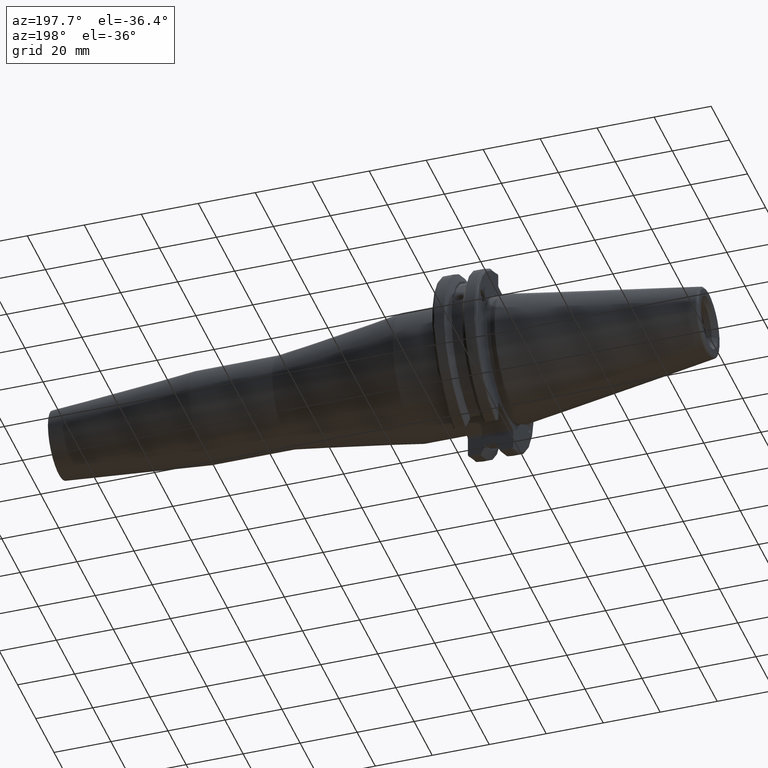
[diagram: clean part render]
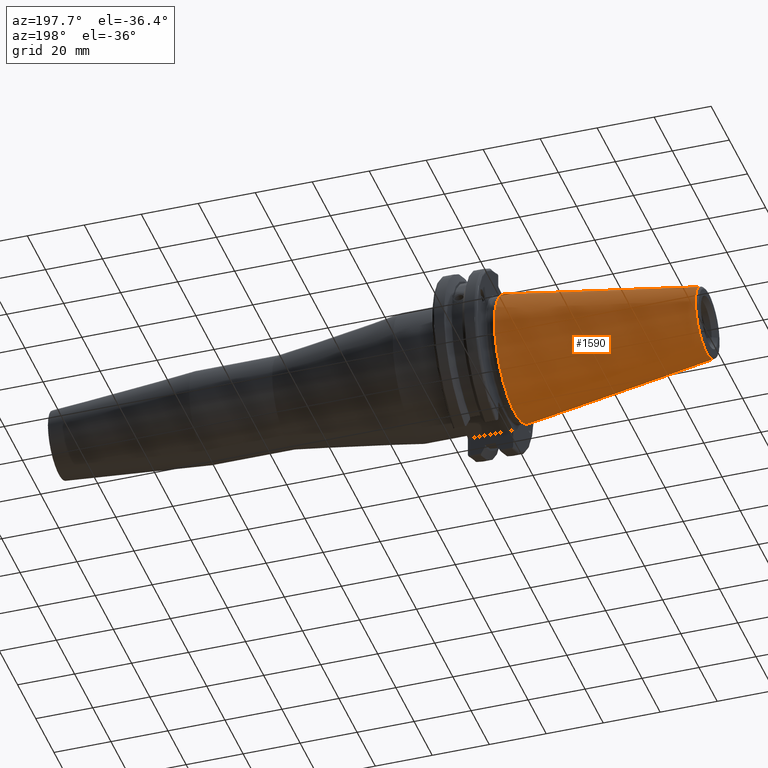
[diagram: same view with one face highlighted and labeled with its STEP entity id]
A machine part, auxiliary view. The second image highlights one B-rep face of the part: STEP entity #1590.
In plain terms, the highlighted conical surface has half-angle 8.297 deg.
Its self-contained STEP definition (entity closure, byte-faithful):
#236=FACE_OUTER_BOUND('',#343,.T.);
#343=EDGE_LOOP('',(#1380,#1381,#1382,#1383,#1384));
#454=LINE('',#3004,#554);
#554=VECTOR('',#2192,17.2484375);
#628=CIRCLE('',#1777,12.3966635780937);
#629=CIRCLE('',#1778,12.3966635780937);
#633=CIRCLE('',#1784,22.225);
#786=VERTEX_POINT('',#2991);
#787=VERTEX_POINT('',#2992);
#790=VERTEX_POINT('',#3002);
#999=EDGE_CURVE('',#786,#787,#628,.T.);
#1000=EDGE_CURVE('',#787,#786,#629,.T.);
#1004=EDGE_CURVE('',#790,#790,#633,.T.);
#1005=EDGE_CURVE('',#790,#787,#454,.T.);
#1380=ORIENTED_EDGE('',*,*,#1004,.F.);
#1381=ORIENTED_EDGE('',*,*,#1005,.T.);
#1382=ORIENTED_EDGE('',*,*,#999,.F.);
#1383=ORIENTED_EDGE('',*,*,#1000,.F.);
#1384=ORIENTED_EDGE('',*,*,#1005,.F.);
#1522=CONICAL_SURFACE('',#1783,17.2484375,0.144812498238939);
#1590=ADVANCED_FACE('',(#236),#1522,.T.);
#1777=AXIS2_PLACEMENT_3D('',#2993,#2176,#2177);
#1778=AXIS2_PLACEMENT_3D('',#2994,#2178,#2179);
#1783=AXIS2_PLACEMENT_3D('',#3001,#2188,#2189);
#1784=AXIS2_PLACEMENT_3D('',#3003,#2190,#2191);
#2176=DIRECTION('center_axis',(-1.,0.,0.));
#2177=DIRECTION('ref_axis',(0.,-1.,3.06161699786838E-17));
#2178=DIRECTION('center_axis',(-1.,0.,0.));
#2179=DIRECTION('ref_axis',(0.,-1.,3.06161699786838E-17));
#2188=DIRECTION('center_axis',(1.,0.,0.));
#2189=DIRECTION('ref_axis',(0.,1.,0.));
#2190=DIRECTION('center_axis',(1.,0.,0.));
#2191=DIRECTION('ref_axis',(0.,0.,-1.));
#2192=DIRECTION('',(-0.989532981063282,0.144306893071729,1.76724974695192E-17));
#2991=CARTESIAN_POINT('',(-67.3943068930717,-1.5181534371019E-15,12.3966635780937));
#2992=CARTESIAN_POINT('',(-67.3943068930718,-12.3966635780937,-1.5181534371019E-15));
#2993=CARTESIAN_POINT('Origin',(-67.3943068930717,0.,-1.89769179637738E-15));
#2994=CARTESIAN_POINT('Origin',(-67.3943068930717,0.,-1.89769179637738E-15));
#3001=CARTESIAN_POINT('Origin',(-34.125,0.,0.));
#3002=CARTESIAN_POINT('',(0.,-22.225,-2.72177751110499E-15));
#3003=CARTESIAN_POINT('Origin',(0.,0.,0.));
#3004=CARTESIAN_POINT('',(-34.125,-17.2484375,-2.11232437746682E-15));